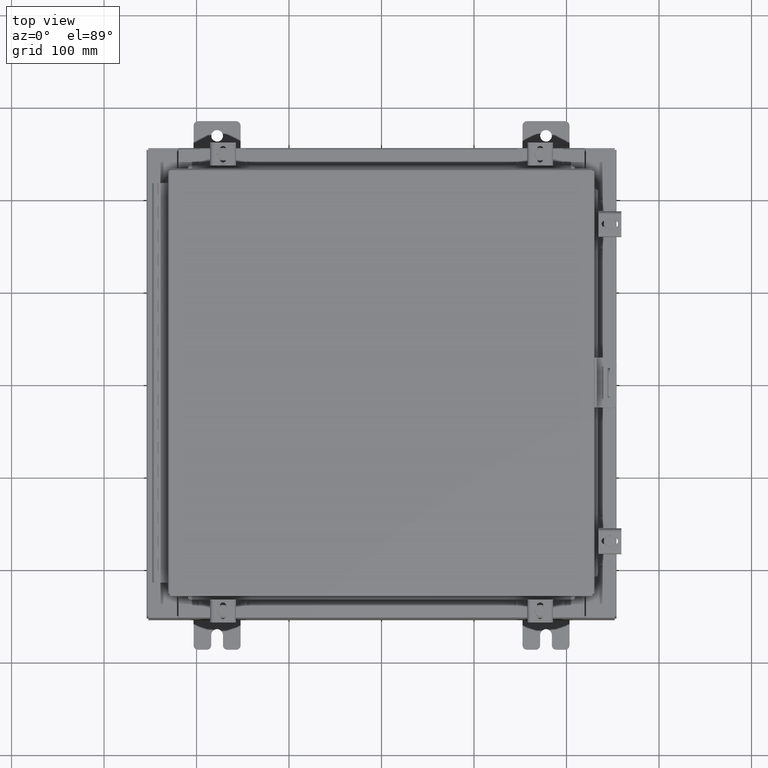
[diagram: clean part render]
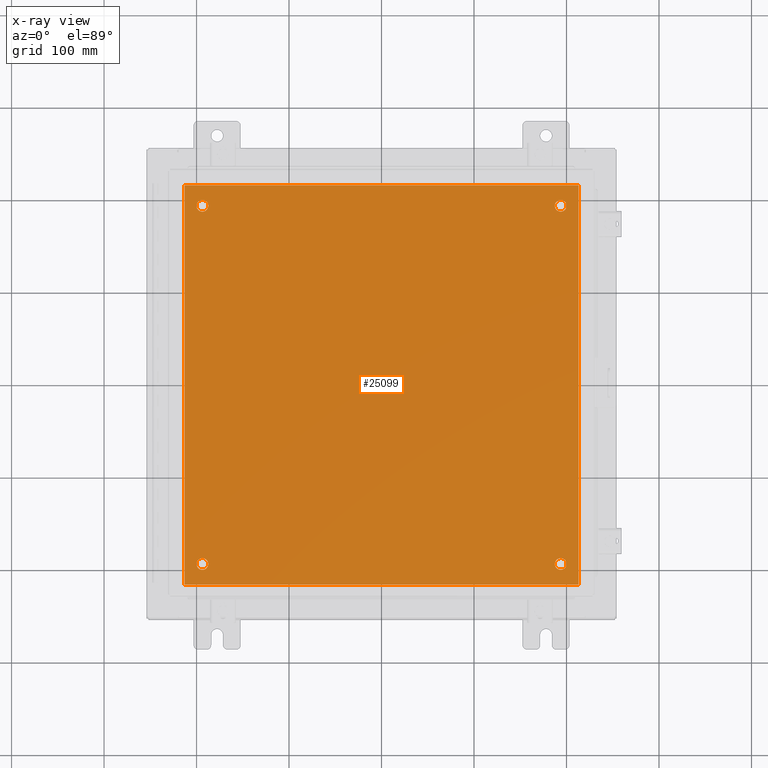
[diagram: x-ray — body ghosted, one internal face saturated and labeled with its STEP entity id]
A machine part, top view, then the same camera in x-ray: the body is ghosted and one INTERNAL B-rep face — a face not visible from any outside direction — is saturated and labeled: STEP entity #25099.
In plain terms, the highlighted planar face has unit normal (0, 0, -1).
Its self-contained STEP definition (entity closure, byte-faithful):
#474 = VECTOR ( 'NONE', #14355, 39.37007874015748100 ) ;
#511 = CARTESIAN_POINT ( 'NONE',  ( 7.625000000000001800, 7.625000000000000900, -0.1039999999999999800 ) ) ;
#617 = DIRECTION ( 'NONE',  ( -0.0000000000000000000, -0.0000000000000000000, 1.000000000000000000 ) ) ;
#659 = CARTESIAN_POINT ( 'NONE',  ( 7.875000000000000900, -7.625000000000000900, -0.1039999999999999800 ) ) ;
#1174 = DIRECTION ( 'NONE',  ( -1.000000000000000000, 0.0000000000000000000, 0.0000000000000000000 ) ) ;
#1409 = DIRECTION ( 'NONE',  ( -1.000000000000000000, -0.0000000000000000000, -0.0000000000000000000 ) ) ;
#1486 = CARTESIAN_POINT ( 'NONE',  ( 8.383000000000000900, -8.499999999999998200, -0.1039999999999999800 ) ) ;
#1531 = VERTEX_POINT ( 'NONE', #25382 ) ;
#1647 = CIRCLE ( 'NONE', #25133, 0.2499999999999987000 ) ;
#1655 = LINE ( 'NONE', #9370, #7033 ) ;
#1727 = DIRECTION ( 'NONE',  ( 0.0000000000000000000, 0.0000000000000000000, -1.000000000000000000 ) ) ;
#1899 = CARTESIAN_POINT ( 'NONE',  ( -7.375000000000001800, -7.625000000000000900, -0.1039999999999999800 ) ) ;
#2132 = EDGE_CURVE ( 'NONE', #20996, #16402, #19781, .T. ) ;
#2258 = ORIENTED_EDGE ( 'NONE', *, *, #2132, .T. ) ;
#2503 = CARTESIAN_POINT ( 'NONE',  ( -7.875000000000001800, -7.625000000000000900, -0.1039999999999999800 ) ) ;
#2810 = DIRECTION ( 'NONE',  ( -1.000000000000000000, 0.0000000000000000000, 0.0000000000000000000 ) ) ;
#3399 = EDGE_CURVE ( 'NONE', #27938, #5320, #15404, .T. ) ;
#3437 = DIRECTION ( 'NONE',  ( -0.0000000000000000000, -0.0000000000000000000, 1.000000000000000000 ) ) ;
#3870 = EDGE_CURVE ( 'NONE', #16402, #20996, #1647, .T. ) ;
#4203 = VERTEX_POINT ( 'NONE', #2503 ) ;
#4532 = ORIENTED_EDGE ( 'NONE', *, *, #15717, .F. ) ;
#4803 = AXIS2_PLACEMENT_3D ( 'NONE', #11380, #617, #15852 ) ;
#5320 = VERTEX_POINT ( 'NONE', #9800 ) ;
#5624 = FACE_BOUND ( 'NONE', #13824, .T. ) ;
#5670 = EDGE_LOOP ( 'NONE', ( #13216, #19481 ) ) ;
#5673 = LINE ( 'NONE', #29343, #23102 ) ;
#5955 = AXIS2_PLACEMENT_3D ( 'NONE', #7434, #23352, #9687 ) ;
#6874 = EDGE_LOOP ( 'NONE', ( #12058, #28457 ) ) ;
#6953 = EDGE_CURVE ( 'NONE', #10902, #1531, #24328, .T. ) ;
#7033 = VECTOR ( 'NONE', #25330, 39.37007874015748100 ) ;
#7213 = CIRCLE ( 'NONE', #5955, 0.2499999999999998100 ) ;
#7434 = CARTESIAN_POINT ( 'NONE',  ( -7.625000000000001800, 7.625000000000000900, -0.1039999999999999800 ) ) ;
#7640 = CIRCLE ( 'NONE', #16551, 0.2499999999999987000 ) ;
#7650 = CARTESIAN_POINT ( 'NONE',  ( 8.383000000000000900, 8.500000000000000000, -0.1039999999999999800 ) ) ;
#8203 = CIRCLE ( 'NONE', #29215, 0.2499999999999998100 ) ;
#8256 = CARTESIAN_POINT ( 'NONE',  ( 7.625000000000001800, -7.625000000000000900, -0.1039999999999999800 ) ) ;
#8261 = CARTESIAN_POINT ( 'NONE',  ( 7.375000000000003600, 7.625000000000000900, -0.1039999999999999800 ) ) ;
#8346 = EDGE_CURVE ( 'NONE', #4203, #9011, #8203, .T. ) ;
#8774 = AXIS2_PLACEMENT_3D ( 'NONE', #24472, #1727, #17684 ) ;
#9011 = VERTEX_POINT ( 'NONE', #1899 ) ;
#9054 = DIRECTION ( 'NONE',  ( -0.0000000000000000000, -0.0000000000000000000, 1.000000000000000000 ) ) ;
#9370 = CARTESIAN_POINT ( 'NONE',  ( -8.382999999999999100, 8.500000000000000000, -0.1039999999999998100 ) ) ;
#9687 = DIRECTION ( 'NONE',  ( -1.000000000000000000, 0.0000000000000000000, 0.0000000000000000000 ) ) ;
#9800 = CARTESIAN_POINT ( 'NONE',  ( -7.875000000000001800, 7.625000000000000900, -0.1039999999999999800 ) ) ;
#10837 = ORIENTED_EDGE ( 'NONE', *, *, #3870, .T. ) ;
#10902 = VERTEX_POINT ( 'NONE', #8261 ) ;
#10917 = FACE_OUTER_BOUND ( 'NONE', #24881, .T. ) ;
#11380 = CARTESIAN_POINT ( 'NONE',  ( -7.625000000000001800, 7.625000000000000900, -0.1039999999999999800 ) ) ;
#12058 = ORIENTED_EDGE ( 'NONE', *, *, #3399, .T. ) ;
#12352 = VECTOR ( 'NONE', #1409, 39.37007874015748100 ) ;
#12594 = LINE ( 'NONE', #28013, #474 ) ;
#12989 = ORIENTED_EDGE ( 'NONE', *, *, #21342, .F. ) ;
#13050 = LINE ( 'NONE', #26545, #12352 ) ;
#13114 = CARTESIAN_POINT ( 'NONE',  ( -8.382999999999999100, 8.500000000000000000, -0.1039999999999998100 ) ) ;
#13143 = AXIS2_PLACEMENT_3D ( 'NONE', #8256, #25498, #17209 ) ;
#13169 = EDGE_LOOP ( 'NONE', ( #17300, #17066 ) ) ;
#13216 = ORIENTED_EDGE ( 'NONE', *, *, #24035, .T. ) ;
#13489 = EDGE_CURVE ( 'NONE', #18323, #14985, #1655, .T. ) ;
#13824 = EDGE_LOOP ( 'NONE', ( #2258, #10837 ) ) ;
#14355 = DIRECTION ( 'NONE',  ( 0.0000000000000000000, 1.000000000000000000, 0.0000000000000000000 ) ) ;
#14417 = CARTESIAN_POINT ( 'NONE',  ( 7.375000000000003600, -7.625000000000000900, -0.1039999999999999800 ) ) ;
#14518 = CARTESIAN_POINT ( 'NONE',  ( -7.375000000000001800, 7.625000000000000900, -0.1039999999999999800 ) ) ;
#14776 = CARTESIAN_POINT ( 'NONE',  ( -8.382999999999999100, -8.499999999999998200, -0.1039999999999998100 ) ) ;
#14827 = DIRECTION ( 'NONE',  ( -0.0000000000000000000, -0.0000000000000000000, 1.000000000000000000 ) ) ;
#14985 = VERTEX_POINT ( 'NONE', #14776 ) ;
#15404 = CIRCLE ( 'NONE', #4803, 0.2499999999999998100 ) ;
#15415 = EDGE_CURVE ( 'NONE', #1531, #10902, #7640, .T. ) ;
#15691 = DIRECTION ( 'NONE',  ( 1.000000000000000000, 0.0000000000000000000, 0.0000000000000000000 ) ) ;
#15717 = EDGE_CURVE ( 'NONE', #20581, #26788, #12594, .T. ) ;
#15852 = DIRECTION ( 'NONE',  ( -1.000000000000000000, 0.0000000000000000000, 0.0000000000000000000 ) ) ;
#16402 = VERTEX_POINT ( 'NONE', #14417 ) ;
#16442 = DIRECTION ( 'NONE',  ( -0.0000000000000000000, -0.0000000000000000000, 1.000000000000000000 ) ) ;
#16551 = AXIS2_PLACEMENT_3D ( 'NONE', #511, #16442, #2810 ) ;
#16996 = FACE_BOUND ( 'NONE', #5670, .T. ) ;
#17064 = CARTESIAN_POINT ( 'NONE',  ( -7.625000000000001800, -7.625000000000000900, -0.1039999999999999800 ) ) ;
#17066 = ORIENTED_EDGE ( 'NONE', *, *, #6953, .T. ) ;
#17209 = DIRECTION ( 'NONE',  ( -1.000000000000000000, 0.0000000000000000000, 0.0000000000000000000 ) ) ;
#17300 = ORIENTED_EDGE ( 'NONE', *, *, #15415, .T. ) ;
#17443 = EDGE_CURVE ( 'NONE', #5320, #27938, #7213, .T. ) ;
#17684 = DIRECTION ( 'NONE',  ( -1.000000000000000000, 0.0000000000000000000, -0.0000000000000000000 ) ) ;
#18323 = VERTEX_POINT ( 'NONE', #13114 ) ;
#19359 = DIRECTION ( 'NONE',  ( -1.000000000000000000, 0.0000000000000000000, 0.0000000000000000000 ) ) ;
#19481 = ORIENTED_EDGE ( 'NONE', *, *, #8346, .T. ) ;
#19781 = CIRCLE ( 'NONE', #13143, 0.2499999999999987000 ) ;
#20501 = CARTESIAN_POINT ( 'NONE',  ( 7.625000000000001800, -7.625000000000000900, -0.1039999999999999800 ) ) ;
#20581 = VERTEX_POINT ( 'NONE', #1486 ) ;
#20890 = DIRECTION ( 'NONE',  ( -0.0000000000000000000, -0.0000000000000000000, 1.000000000000000000 ) ) ;
#20996 = VERTEX_POINT ( 'NONE', #659 ) ;
#21342 = EDGE_CURVE ( 'NONE', #14985, #20581, #5673, .T. ) ;
#22011 = ORIENTED_EDGE ( 'NONE', *, *, #22176, .F. ) ;
#22176 = EDGE_CURVE ( 'NONE', #26788, #18323, #13050, .T. ) ;
#22184 = PLANE ( 'NONE',  #8774 ) ;
#22581 = DIRECTION ( 'NONE',  ( -1.000000000000000000, 0.0000000000000000000, 0.0000000000000000000 ) ) ;
#22721 = CARTESIAN_POINT ( 'NONE',  ( 7.625000000000001800, 7.625000000000000900, -0.1039999999999999800 ) ) ;
#22894 = AXIS2_PLACEMENT_3D ( 'NONE', #22721, #9054, #25006 ) ;
#23054 = FACE_BOUND ( 'NONE', #6874, .T. ) ;
#23102 = VECTOR ( 'NONE', #15691, 39.37007874015748100 ) ;
#23352 = DIRECTION ( 'NONE',  ( -0.0000000000000000000, -0.0000000000000000000, 1.000000000000000000 ) ) ;
#23832 = AXIS2_PLACEMENT_3D ( 'NONE', #17064, #3437, #19359 ) ;
#24035 = EDGE_CURVE ( 'NONE', #9011, #4203, #27230, .T. ) ;
#24328 = CIRCLE ( 'NONE', #22894, 0.2499999999999987000 ) ;
#24472 = CARTESIAN_POINT ( 'NONE',  ( 0.0000000000000000000, 0.0000000000000000000, -0.1039999999999999800 ) ) ;
#24881 = EDGE_LOOP ( 'NONE', ( #12989, #28364, #22011, #4532 ) ) ;
#25006 = DIRECTION ( 'NONE',  ( -1.000000000000000000, 0.0000000000000000000, 0.0000000000000000000 ) ) ;
#25099 = ADVANCED_FACE ( 'NONE', ( #16996, #5624, #29116, #23054, #10917 ), #22184, .T. ) ;
#25133 = AXIS2_PLACEMENT_3D ( 'NONE', #20501, #20890, #22581 ) ;
#25330 = DIRECTION ( 'NONE',  ( 0.0000000000000000000, -1.000000000000000000, 0.0000000000000000000 ) ) ;
#25382 = CARTESIAN_POINT ( 'NONE',  ( 7.875000000000000900, 7.625000000000000900, -0.1039999999999999800 ) ) ;
#25498 = DIRECTION ( 'NONE',  ( -0.0000000000000000000, -0.0000000000000000000, 1.000000000000000000 ) ) ;
#26545 = CARTESIAN_POINT ( 'NONE',  ( -8.500000000000000000, 8.500000000000000000, -0.1039999999999999800 ) ) ;
#26788 = VERTEX_POINT ( 'NONE', #7650 ) ;
#27230 = CIRCLE ( 'NONE', #23832, 0.2499999999999998100 ) ;
#27938 = VERTEX_POINT ( 'NONE', #14518 ) ;
#28013 = CARTESIAN_POINT ( 'NONE',  ( 8.383000000000000900, -8.499999999999998200, -0.1039999999999998100 ) ) ;
#28364 = ORIENTED_EDGE ( 'NONE', *, *, #13489, .F. ) ;
#28457 = ORIENTED_EDGE ( 'NONE', *, *, #17443, .T. ) ;
#28477 = CARTESIAN_POINT ( 'NONE',  ( -7.625000000000001800, -7.625000000000000900, -0.1039999999999999800 ) ) ;
#29116 = FACE_BOUND ( 'NONE', #13169, .T. ) ;
#29215 = AXIS2_PLACEMENT_3D ( 'NONE', #28477, #14827, #1174 ) ;
#29343 = CARTESIAN_POINT ( 'NONE',  ( -8.500000000000000000, -8.499999999999998200, -0.1039999999999999800 ) ) ;